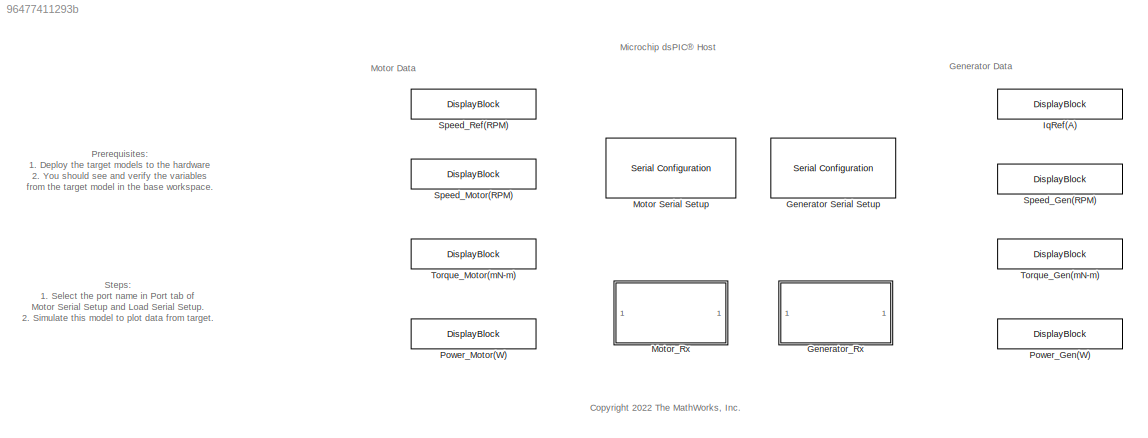
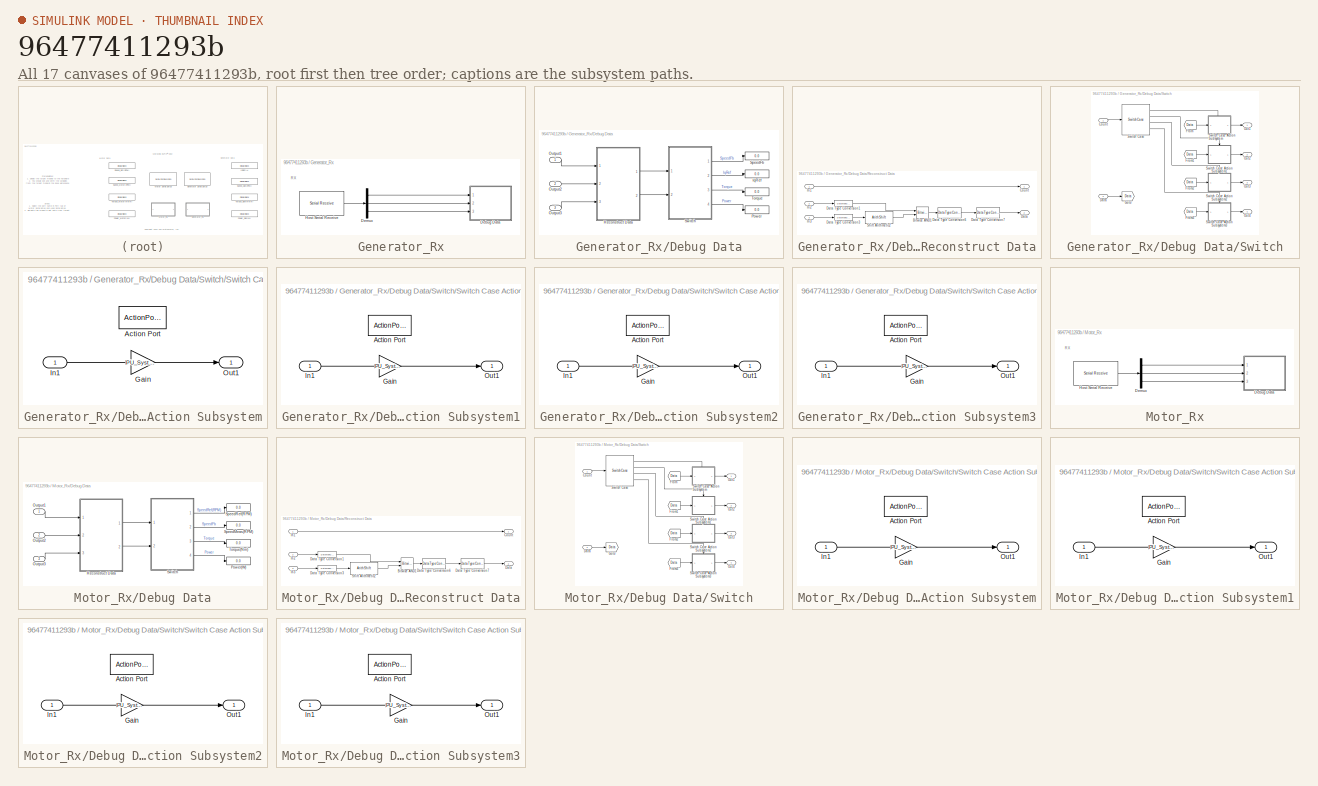
[diagram: thumbnail index - all 17 canvases of the model, root first then tree order]
MODEL slx_96477411293b
KIND model
CONFIG AbsTol = auto
CONFIG EnableMultiTasking = on
CONFIG FixedStep = auto
CONFIG MaxStep = auto
CONFIG MinStep = auto
CONFIG RelTol = 1e-3
CONFIG SampleTimeConstraint = Unconstrained
CONFIG SolverName = FixedStepDiscrete
CONFIG StartTime = 0.0
CONFIG StopTime = inf
BLOCK [Reference] Generator Serial Setup  REF=instrumentseriallib/Serial Configuration
  Ports = []
  Priority = -99
  SourceBlock = instrumentseriallib/Serial Configuration
  SourceProductBaseCode = OT,IC,MT
  SourceType = system.SerialConfiguration
BLOCK [SubSystem] Generator_Rx
  Ports = []
  RequestExecContextInheritance = off
BLOCK [SubSystem] Generator_Rx/Debug Data
  Ports = [3]
  RequestExecContextInheritance = off
BLOCK [Display] Generator_Rx/Debug Data/IqRef
  Decimation = 1
  Ports = [1]
BLOCK [Inport] Generator_Rx/Debug Data/Output1
BLOCK [Inport] Generator_Rx/Debug Data/Output2
  Port = 2
BLOCK [Inport] Generator_Rx/Debug Data/Output3
  Port = 3
BLOCK [Display] Generator_Rx/Debug Data/Power
  Decimation = 1
  Ports = [1]
BLOCK [SubSystem] Generator_Rx/Debug Data/Reconstruct Data
  Ports = [3, 2]
  RequestExecContextInheritance = off
BLOCK [Reference] Generator_Rx/Debug Data/Reconstruct Data/Bitwise AND1  REF=simulink/Logic and Bit
Operations/Bitwise
Operator
  Ports = [2, 1]
  SourceBlock = simulink/Logic and Bit\nOperations/Bitwise\nOperator
  SourceProductBaseCode = SL
  SourceType = Bitwise Operator
BLOCK [Outport] Generator_Rx/Debug Data/Reconstruct Data/Count
BLOCK [Outport] Generator_Rx/Debug Data/Reconstruct Data/Data
  Port = 2
BLOCK [DataTypeConversion] Generator_Rx/Debug Data/Reconstruct Data/Data Type Conversion1
  OutDataTypeStr = uint32
  RndMeth = Simplest
  SaturateOnIntegerOverflow = off
BLOCK [DataTypeConversion] Generator_Rx/Debug Data/Reconstruct Data/Data Type Conversion3
  OutDataTypeStr = uint32
  RndMeth = Simplest
  SaturateOnIntegerOverflow = off
BLOCK [DataTypeConversion] Generator_Rx/Debug Data/Reconstruct Data/Data Type Conversion6
  ConvertRealWorld = Stored Integer (SI)
  OutDataTypeStr = fixdt(1,16,14)
  RndMeth = Simplest
  SaturateOnIntegerOverflow = off
BLOCK [DataTypeConversion] Generator_Rx/Debug Data/Reconstruct Data/Data Type Conversion7
  OutDataTypeStr = single
  RndMeth = Simplest
  SaturateOnIntegerOverflow = off
BLOCK [Inport] Generator_Rx/Debug Data/Reconstruct Data/In1
BLOCK [Inport] Generator_Rx/Debug Data/Reconstruct Data/In2
  Port = 2
BLOCK [Inport] Generator_Rx/Debug Data/Reconstruct Data/In3
  Port = 3
BLOCK [ArithShift] Generator_Rx/Debug Data/Reconstruct Data/Shift Arithmetic2
  BitShiftDirection = Left
  BitShiftNumber = 8
  InputPortMap = u0
  Ports = [1, 1]
BLOCK [Display] Generator_Rx/Debug Data/SpeedFb
  Decimation = 1
  Ports = [1]
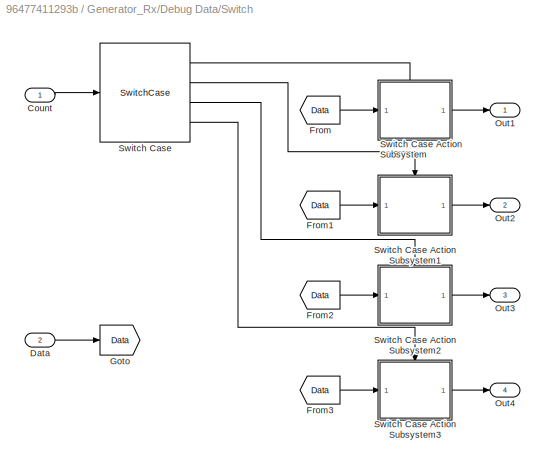
BLOCK [SubSystem] Generator_Rx/Debug Data/Switch
  Ports = [2, 4]
  RequestExecContextInheritance = off
BLOCK [Inport] Generator_Rx/Debug Data/Switch/Count
BLOCK [Inport] Generator_Rx/Debug Data/Switch/Data
  Port = 2
BLOCK [From] Generator_Rx/Debug Data/Switch/From
  GotoTag = Data
BLOCK [From] Generator_Rx/Debug Data/Switch/From1
  GotoTag = Data
BLOCK [From] Generator_Rx/Debug Data/Switch/From2
  GotoTag = Data
BLOCK [From] Generator_Rx/Debug Data/Switch/From3
  GotoTag = Data
BLOCK [Goto] Generator_Rx/Debug Data/Switch/Goto
  GotoTag = Data
BLOCK [Outport] Generator_Rx/Debug Data/Switch/Out1
BLOCK [Outport] Generator_Rx/Debug Data/Switch/Out2
  Port = 2
BLOCK [Outport] Generator_Rx/Debug Data/Switch/Out3
  Port = 3
BLOCK [Outport] Generator_Rx/Debug Data/Switch/Out4
  Port = 4
BLOCK [SwitchCase] Generator_Rx/Debug Data/Switch/Switch Case
  CaseConditions = {0,1,2,3}
  Ports = [1, 4]
  ShowDefaultCase = off
BLOCK [SubSystem] Generator_Rx/Debug Data/Switch/Switch Case Action Subsystem
  Ports = [1, 1, 0, 0, 0, 0, 0, 1]
  RequestExecContextInheritance = off
  TreatAsAtomicUnit = on
BLOCK [ActionPort] Generator_Rx/Debug Data/Switch/Switch Case Action Subsystem/Action Port
  ActionPortLabel = case [ 0 ]:
BLOCK [Gain] Generator_Rx/Debug Data/Switch/Switch Case Action Subsystem/Gain
  Gain = PU_System.N_base*1.1
BLOCK [Inport] Generator_Rx/Debug Data/Switch/Switch Case Action Subsystem/In1
BLOCK [Outport] Generator_Rx/Debug Data/Switch/Switch Case Action Subsystem/Out1
BLOCK [SubSystem] Generator_Rx/Debug Data/Switch/Switch Case Action Subsystem1
  Ports = [1, 1, 0, 0, 0, 0, 0, 1]
  RequestExecContextInheritance = off
  TreatAsAtomicUnit = on
BLOCK [ActionPort] Generator_Rx/Debug Data/Switch/Switch Case Action Subsystem1/Action Port
  ActionPortLabel = case [ 1 ]:
BLOCK [Gain] Generator_Rx/Debug Data/Switch/Switch Case Action Subsystem1/Gain
  Gain = PU_System.I_base
BLOCK [Inport] Generator_Rx/Debug Data/Switch/Switch Case Action Subsystem1/In1
BLOCK [Outport] Generator_Rx/Debug Data/Switch/Switch Case Action Subsystem1/Out1
BLOCK [SubSystem] Generator_Rx/Debug Data/Switch/Switch Case Action Subsystem2
  Ports = [1, 1, 0, 0, 0, 0, 0, 1]
  RequestExecContextInheritance = off
  TreatAsAtomicUnit = on
BLOCK [ActionPort] Generator_Rx/Debug Data/Switch/Switch Case Action Subsystem2/Action Port
  ActionPortLabel = case [ 2 ]:
BLOCK [Gain] Generator_Rx/Debug Data/Switch/Switch Case Action Subsystem2/Gain
  Gain = PU_System.T_base*1000
BLOCK [Inport] Generator_Rx/Debug Data/Switch/Switch Case Action Subsystem2/In1
BLOCK [Outport] Generator_Rx/Debug Data/Switch/Switch Case Action Subsystem2/Out1
BLOCK [SubSystem] Generator_Rx/Debug Data/Switch/Switch Case Action Subsystem3
  Ports = [1, 1, 0, 0, 0, 0, 0, 1]
  RequestExecContextInheritance = off
  TreatAsAtomicUnit = on
BLOCK [ActionPort] Generator_Rx/Debug Data/Switch/Switch Case Action Subsystem3/Action Port
  ActionPortLabel = case [ 3 ]:
BLOCK [Gain] Generator_Rx/Debug Data/Switch/Switch Case Action Subsystem3/Gain
  Gain = PU_System.P_base
BLOCK [Inport] Generator_Rx/Debug Data/Switch/Switch Case Action Subsystem3/In1
BLOCK [Outport] Generator_Rx/Debug Data/Switch/Switch Case Action Subsystem3/Out1
BLOCK [Display] Generator_Rx/Debug Data/Torque
  Decimation = 1
  Ports = [1]
BLOCK [Demux] Generator_Rx/Demux
  Outputs = 3
  Ports = [1, 3]
BLOCK [Reference] Generator_Rx/Host Serial Receive  REF=instrumentseriallib/Serial Receive
  Ports = [0, 1]
  SourceBlock = instrumentseriallib/Serial Receive
  SourceProductBaseCode = OT,IC,MT
  SourceType = system.SerialReceive
BLOCK [DisplayBlock] IqRef(A)
  Format = bank
  LabelPosition = Hide
  Transparency = 1
BLOCK [Reference] Motor Serial Setup  REF=instrumentseriallib/Serial Configuration
  Ports = []
  Priority = -99
  SourceBlock = instrumentseriallib/Serial Configuration
  SourceProductBaseCode = OT,IC,MT
  SourceType = system.SerialConfiguration
BLOCK [SubSystem] Motor_Rx
  Ports = []
  RequestExecContextInheritance = off
BLOCK [SubSystem] Motor_Rx/Debug Data
  Ports = [3]
  RequestExecContextInheritance = off
BLOCK [Inport] Motor_Rx/Debug Data/Output1
BLOCK [Inport] Motor_Rx/Debug Data/Output2
  Port = 2
BLOCK [Inport] Motor_Rx/Debug Data/Output3
  Port = 3
BLOCK [Display] Motor_Rx/Debug Data/Power(W)
  Decimation = 1
  Ports = [1]
BLOCK [SubSystem] Motor_Rx/Debug Data/Reconstruct Data
  Ports = [3, 2]
  RequestExecContextInheritance = off
BLOCK [Reference] Motor_Rx/Debug Data/Reconstruct Data/Bitwise AND1  REF=simulink/Logic and Bit
Operations/Bitwise
Operator
  Ports = [2, 1]
  SourceBlock = simulink/Logic and Bit\nOperations/Bitwise\nOperator
  SourceProductBaseCode = SL
  SourceType = Bitwise Operator
BLOCK [Outport] Motor_Rx/Debug Data/Reconstruct Data/Count
BLOCK [Outport] Motor_Rx/Debug Data/Reconstruct Data/Data
  Port = 2
BLOCK [DataTypeConversion] Motor_Rx/Debug Data/Reconstruct Data/Data Type Conversion1
  OutDataTypeStr = uint32
  RndMeth = Simplest
  SaturateOnIntegerOverflow = off
BLOCK [DataTypeConversion] Motor_Rx/Debug Data/Reconstruct Data/Data Type Conversion3
  OutDataTypeStr = uint32
  RndMeth = Simplest
  SaturateOnIntegerOverflow = off
BLOCK [DataTypeConversion] Motor_Rx/Debug Data/Reconstruct Data/Data Type Conversion6
  ConvertRealWorld = Stored Integer (SI)
  OutDataTypeStr = fixdt(1,16,14)
  RndMeth = Simplest
  SaturateOnIntegerOverflow = off
BLOCK [DataTypeConversion] Motor_Rx/Debug Data/Reconstruct Data/Data Type Conversion7
  OutDataTypeStr = single
  RndMeth = Simplest
  SaturateOnIntegerOverflow = off
BLOCK [Inport] Motor_Rx/Debug Data/Reconstruct Data/In1
BLOCK [Inport] Motor_Rx/Debug Data/Reconstruct Data/In2
  Port = 2
BLOCK [Inport] Motor_Rx/Debug Data/Reconstruct Data/In3
  Port = 3
BLOCK [ArithShift] Motor_Rx/Debug Data/Reconstruct Data/Shift Arithmetic2
  BitShiftDirection = Left
  BitShiftNumber = 8
  InputPortMap = u0
  Ports = [1, 1]
BLOCK [Display] Motor_Rx/Debug Data/SpeedMeas(RPM)
  Decimation = 1
  Ports = [1]
BLOCK [Display] Motor_Rx/Debug Data/SpeedRef(RPM)
  Decimation = 1
  Ports = [1]
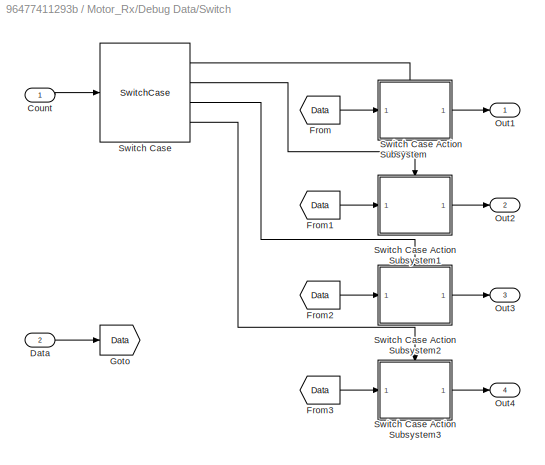
BLOCK [SubSystem] Motor_Rx/Debug Data/Switch
  Ports = [2, 4]
  RequestExecContextInheritance = off
BLOCK [Inport] Motor_Rx/Debug Data/Switch/Count
BLOCK [Inport] Motor_Rx/Debug Data/Switch/Data
  Port = 2
BLOCK [From] Motor_Rx/Debug Data/Switch/From
  GotoTag = Data
BLOCK [From] Motor_Rx/Debug Data/Switch/From1
  GotoTag = Data
BLOCK [From] Motor_Rx/Debug Data/Switch/From2
  GotoTag = Data
BLOCK [From] Motor_Rx/Debug Data/Switch/From3
  GotoTag = Data
BLOCK [Goto] Motor_Rx/Debug Data/Switch/Goto
  GotoTag = Data
BLOCK [Outport] Motor_Rx/Debug Data/Switch/Out1
BLOCK [Outport] Motor_Rx/Debug Data/Switch/Out2
  Port = 2
BLOCK [Outport] Motor_Rx/Debug Data/Switch/Out3
  Port = 3
BLOCK [Outport] Motor_Rx/Debug Data/Switch/Out4
  Port = 4
BLOCK [SwitchCase] Motor_Rx/Debug Data/Switch/Switch Case
  CaseConditions = {0,1,2,3}
  Ports = [1, 4]
  ShowDefaultCase = off
BLOCK [SubSystem] Motor_Rx/Debug Data/Switch/Switch Case Action Subsystem
  Ports = [1, 1, 0, 0, 0, 0, 0, 1]
  RequestExecContextInheritance = off
  TreatAsAtomicUnit = on
BLOCK [ActionPort] Motor_Rx/Debug Data/Switch/Switch Case Action Subsystem/Action Port
  ActionPortLabel = case [ 0 ]:
BLOCK [Gain] Motor_Rx/Debug Data/Switch/Switch Case Action Subsystem/Gain
  Gain = PU_System.N_base
BLOCK [Inport] Motor_Rx/Debug Data/Switch/Switch Case Action Subsystem/In1
BLOCK [Outport] Motor_Rx/Debug Data/Switch/Switch Case Action Subsystem/Out1
BLOCK [SubSystem] Motor_Rx/Debug Data/Switch/Switch Case Action Subsystem1
  Ports = [1, 1, 0, 0, 0, 0, 0, 1]
  RequestExecContextInheritance = off
  TreatAsAtomicUnit = on
BLOCK [ActionPort] Motor_Rx/Debug Data/Switch/Switch Case Action Subsystem1/Action Port
  ActionPortLabel = case [ 1 ]:
BLOCK [Gain] Motor_Rx/Debug Data/Switch/Switch Case Action Subsystem1/Gain
  Gain = PU_System.N_base
BLOCK [Inport] Motor_Rx/Debug Data/Switch/Switch Case Action Subsystem1/In1
BLOCK [Outport] Motor_Rx/Debug Data/Switch/Switch Case Action Subsystem1/Out1
BLOCK [SubSystem] Motor_Rx/Debug Data/Switch/Switch Case Action Subsystem2
  Ports = [1, 1, 0, 0, 0, 0, 0, 1]
  RequestExecContextInheritance = off
  TreatAsAtomicUnit = on
BLOCK [ActionPort] Motor_Rx/Debug Data/Switch/Switch Case Action Subsystem2/Action Port
  ActionPortLabel = case [ 2 ]:
BLOCK [Gain] Motor_Rx/Debug Data/Switch/Switch Case Action Subsystem2/Gain
  Gain = PU_System.T_base*1000
BLOCK [Inport] Motor_Rx/Debug Data/Switch/Switch Case Action Subsystem2/In1
BLOCK [Outport] Motor_Rx/Debug Data/Switch/Switch Case Action Subsystem2/Out1
BLOCK [SubSystem] Motor_Rx/Debug Data/Switch/Switch Case Action Subsystem3
  Ports = [1, 1, 0, 0, 0, 0, 0, 1]
  RequestExecContextInheritance = off
  TreatAsAtomicUnit = on
BLOCK [ActionPort] Motor_Rx/Debug Data/Switch/Switch Case Action Subsystem3/Action Port
  ActionPortLabel = case [ 3 ]:
BLOCK [Gain] Motor_Rx/Debug Data/Switch/Switch Case Action Subsystem3/Gain
  Gain = PU_System.P_base
BLOCK [Inport] Motor_Rx/Debug Data/Switch/Switch Case Action Subsystem3/In1
BLOCK [Outport] Motor_Rx/Debug Data/Switch/Switch Case Action Subsystem3/Out1
BLOCK [Display] Motor_Rx/Debug Data/Torque(Nm)
  Decimation = 1
  Ports = [1]
BLOCK [Demux] Motor_Rx/Demux
  Outputs = 3
  Ports = [1, 3]
BLOCK [Reference] Motor_Rx/Host Serial Receive  REF=instrumentseriallib/Serial Receive
  Ports = [0, 1]
  SourceBlock = instrumentseriallib/Serial Receive
  SourceProductBaseCode = OT,IC,MT
  SourceType = system.SerialReceive
BLOCK [DisplayBlock] Power_Gen(W)
  Format = bank
  LabelPosition = Hide
  Transparency = 1
BLOCK [DisplayBlock] Power_Motor(W)
  Format = bank
  FormatString = %i
  LabelPosition = Hide
  Transparency = 1
BLOCK [DisplayBlock] Speed_Gen(RPM)
  Format = Integer
  LabelPosition = Hide
  Transparency = 1
BLOCK [DisplayBlock] Speed_Motor(RPM)
  Format = Integer
  LabelPosition = Hide
  Transparency = 1
BLOCK [DisplayBlock] Speed_Ref(RPM)
  Format = Integer
  LabelPosition = Hide
  Transparency = 1
BLOCK [DisplayBlock] Torque_Gen(mN-m)
  Format = bank
  LabelPosition = Hide
  Transparency = 1
BLOCK [DisplayBlock] Torque_Motor(mN-m)
  Format = bank
  LabelPosition = Hide
  Transparency = 1
ANNOTATION (root): Prerequisites : 1. Deploy the target models to the hardware 2. You should see and verify the variables from the target model in the base workspace.
ANNOTATION (root): Steps: 1. Select the port name in Port tab of Motor Serial Setup and Load Serial Setup . 2. Simulate this model to plot data from target.
ANNOTATION (root): Microchip dsPIC® Host
ANNOTATION (root): <copyright redacted>
ANNOTATION (root): Generator Data
ANNOTATION (root): Motor Data
ANNOTATION Generator_Rx: RX
ANNOTATION Motor_Rx: RX
LINE Generator_Rx/Debug Data/Output1:1 -> Generator_Rx/Debug Data/Reconstruct Data:1
LINE Generator_Rx/Debug Data/Output2:1 -> Generator_Rx/Debug Data/Reconstruct Data:2
LINE Generator_Rx/Debug Data/Output3:1 -> Generator_Rx/Debug Data/Reconstruct Data:3
LINE Generator_Rx/Debug Data/Reconstruct Data/Bitwise AND1:1 -> Generator_Rx/Debug Data/Reconstruct Data/Data Type Conversion6:1
LINE Generator_Rx/Debug Data/Reconstruct Data/Data Type Conversion1:1 -> Generator_Rx/Debug Data/Reconstruct Data/Bitwise AND1:1
LINE Generator_Rx/Debug Data/Reconstruct Data/Data Type Conversion3:1 -> Generator_Rx/Debug Data/Reconstruct Data/Shift Arithmetic2:1
LINE Generator_Rx/Debug Data/Reconstruct Data/Data Type Conversion6:1 -> Generator_Rx/Debug Data/Reconstruct Data/Data Type Conversion7:1
LINE Generator_Rx/Debug Data/Reconstruct Data/Data Type Conversion7:1 -> Generator_Rx/Debug Data/Reconstruct Data/Data:1
LINE Generator_Rx/Debug Data/Reconstruct Data/In1:1 -> Generator_Rx/Debug Data/Reconstruct Data/Count:1
LINE Generator_Rx/Debug Data/Reconstruct Data/In2:1 -> Generator_Rx/Debug Data/Reconstruct Data/Data Type Conversion1:1
LINE Generator_Rx/Debug Data/Reconstruct Data/In3:1 -> Generator_Rx/Debug Data/Reconstruct Data/Data Type Conversion3:1
LINE Generator_Rx/Debug Data/Reconstruct Data/Shift Arithmetic2:1 -> Generator_Rx/Debug Data/Reconstruct Data/Bitwise AND1:2
LINE Generator_Rx/Debug Data/Reconstruct Data:1 -> Generator_Rx/Debug Data/Switch:1
LINE Generator_Rx/Debug Data/Reconstruct Data:2 -> Generator_Rx/Debug Data/Switch:2
LINE Generator_Rx/Debug Data/Switch/Count:1 -> Generator_Rx/Debug Data/Switch/Switch Case:1
LINE Generator_Rx/Debug Data/Switch/Data:1 -> Generator_Rx/Debug Data/Switch/Goto:1
LINE Generator_Rx/Debug Data/Switch/From1:1 -> Generator_Rx/Debug Data/Switch/Switch Case Action Subsystem1:1
LINE Generator_Rx/Debug Data/Switch/From2:1 -> Generator_Rx/Debug Data/Switch/Switch Case Action Subsystem2:1
LINE Generator_Rx/Debug Data/Switch/From3:1 -> Generator_Rx/Debug Data/Switch/Switch Case Action Subsystem3:1
LINE Generator_Rx/Debug Data/Switch/From:1 -> Generator_Rx/Debug Data/Switch/Switch Case Action Subsystem:1
LINE Generator_Rx/Debug Data/Switch/Switch Case Action Subsystem/Gain:1 -> Generator_Rx/Debug Data/Switch/Switch Case Action Subsystem/Out1:1
LINE Generator_Rx/Debug Data/Switch/Switch Case Action Subsystem/In1:1 -> Generator_Rx/Debug Data/Switch/Switch Case Action Subsystem/Gain:1
LINE Generator_Rx/Debug Data/Switch/Switch Case Action Subsystem1/Gain:1 -> Generator_Rx/Debug Data/Switch/Switch Case Action Subsystem1/Out1:1
LINE Generator_Rx/Debug Data/Switch/Switch Case Action Subsystem1/In1:1 -> Generator_Rx/Debug Data/Switch/Switch Case Action Subsystem1/Gain:1
LINE Generator_Rx/Debug Data/Switch/Switch Case Action Subsystem1:1 -> Generator_Rx/Debug Data/Switch/Out2:1
LINE Generator_Rx/Debug Data/Switch/Switch Case Action Subsystem2/Gain:1 -> Generator_Rx/Debug Data/Switch/Switch Case Action Subsystem2/Out1:1
LINE Generator_Rx/Debug Data/Switch/Switch Case Action Subsystem2/In1:1 -> Generator_Rx/Debug Data/Switch/Switch Case Action Subsystem2/Gain:1
LINE Generator_Rx/Debug Data/Switch/Switch Case Action Subsystem2:1 -> Generator_Rx/Debug Data/Switch/Out3:1
LINE Generator_Rx/Debug Data/Switch/Switch Case Action Subsystem3/Gain:1 -> Generator_Rx/Debug Data/Switch/Switch Case Action Subsystem3/Out1:1
LINE Generator_Rx/Debug Data/Switch/Switch Case Action Subsystem3/In1:1 -> Generator_Rx/Debug Data/Switch/Switch Case Action Subsystem3/Gain:1
LINE Generator_Rx/Debug Data/Switch/Switch Case Action Subsystem3:1 -> Generator_Rx/Debug Data/Switch/Out4:1
LINE Generator_Rx/Debug Data/Switch/Switch Case Action Subsystem:1 -> Generator_Rx/Debug Data/Switch/Out1:1
LINE Generator_Rx/Debug Data/Switch/Switch Case:1 -> Generator_Rx/Debug Data/Switch/Switch Case Action Subsystem:ifaction
LINE Generator_Rx/Debug Data/Switch/Switch Case:2 -> Generator_Rx/Debug Data/Switch/Switch Case Action Subsystem1:ifaction
LINE Generator_Rx/Debug Data/Switch/Switch Case:3 -> Generator_Rx/Debug Data/Switch/Switch Case Action Subsystem2:ifaction
LINE Generator_Rx/Debug Data/Switch/Switch Case:4 -> Generator_Rx/Debug Data/Switch/Switch Case Action Subsystem3:ifaction
LINE Generator_Rx/Debug Data/Switch:1 -> Generator_Rx/Debug Data/SpeedFb:1
LINE Generator_Rx/Debug Data/Switch:2 -> Generator_Rx/Debug Data/IqRef:1
LINE Generator_Rx/Debug Data/Switch:3 -> Generator_Rx/Debug Data/Torque:1
LINE Generator_Rx/Debug Data/Switch:4 -> Generator_Rx/Debug Data/Power:1
LINE Generator_Rx/Demux:1 -> Generator_Rx/Debug Data:1
LINE Generator_Rx/Demux:2 -> Generator_Rx/Debug Data:2
LINE Generator_Rx/Demux:3 -> Generator_Rx/Debug Data:3
LINE Generator_Rx/Host Serial Receive:1 -> Generator_Rx/Demux:1
LINE Motor_Rx/Debug Data/Output1:1 -> Motor_Rx/Debug Data/Reconstruct Data:1
LINE Motor_Rx/Debug Data/Output2:1 -> Motor_Rx/Debug Data/Reconstruct Data:2
LINE Motor_Rx/Debug Data/Output3:1 -> Motor_Rx/Debug Data/Reconstruct Data:3
LINE Motor_Rx/Debug Data/Reconstruct Data/Bitwise AND1:1 -> Motor_Rx/Debug Data/Reconstruct Data/Data Type Conversion6:1
LINE Motor_Rx/Debug Data/Reconstruct Data/Data Type Conversion1:1 -> Motor_Rx/Debug Data/Reconstruct Data/Bitwise AND1:1
LINE Motor_Rx/Debug Data/Reconstruct Data/Data Type Conversion3:1 -> Motor_Rx/Debug Data/Reconstruct Data/Shift Arithmetic2:1
LINE Motor_Rx/Debug Data/Reconstruct Data/Data Type Conversion6:1 -> Motor_Rx/Debug Data/Reconstruct Data/Data Type Conversion7:1
LINE Motor_Rx/Debug Data/Reconstruct Data/Data Type Conversion7:1 -> Motor_Rx/Debug Data/Reconstruct Data/Data:1
LINE Motor_Rx/Debug Data/Reconstruct Data/In1:1 -> Motor_Rx/Debug Data/Reconstruct Data/Count:1
LINE Motor_Rx/Debug Data/Reconstruct Data/In2:1 -> Motor_Rx/Debug Data/Reconstruct Data/Data Type Conversion1:1
LINE Motor_Rx/Debug Data/Reconstruct Data/In3:1 -> Motor_Rx/Debug Data/Reconstruct Data/Data Type Conversion3:1
LINE Motor_Rx/Debug Data/Reconstruct Data/Shift Arithmetic2:1 -> Motor_Rx/Debug Data/Reconstruct Data/Bitwise AND1:2
LINE Motor_Rx/Debug Data/Reconstruct Data:1 -> Motor_Rx/Debug Data/Switch:1
LINE Motor_Rx/Debug Data/Reconstruct Data:2 -> Motor_Rx/Debug Data/Switch:2
LINE Motor_Rx/Debug Data/Switch/Count:1 -> Motor_Rx/Debug Data/Switch/Switch Case:1
LINE Motor_Rx/Debug Data/Switch/Data:1 -> Motor_Rx/Debug Data/Switch/Goto:1
LINE Motor_Rx/Debug Data/Switch/From1:1 -> Motor_Rx/Debug Data/Switch/Switch Case Action Subsystem1:1
LINE Motor_Rx/Debug Data/Switch/From2:1 -> Motor_Rx/Debug Data/Switch/Switch Case Action Subsystem2:1
LINE Motor_Rx/Debug Data/Switch/From3:1 -> Motor_Rx/Debug Data/Switch/Switch Case Action Subsystem3:1
LINE Motor_Rx/Debug Data/Switch/From:1 -> Motor_Rx/Debug Data/Switch/Switch Case Action Subsystem:1
LINE Motor_Rx/Debug Data/Switch/Switch Case Action Subsystem/Gain:1 -> Motor_Rx/Debug Data/Switch/Switch Case Action Subsystem/Out1:1
LINE Motor_Rx/Debug Data/Switch/Switch Case Action Subsystem/In1:1 -> Motor_Rx/Debug Data/Switch/Switch Case Action Subsystem/Gain:1
LINE Motor_Rx/Debug Data/Switch/Switch Case Action Subsystem1/Gain:1 -> Motor_Rx/Debug Data/Switch/Switch Case Action Subsystem1/Out1:1
LINE Motor_Rx/Debug Data/Switch/Switch Case Action Subsystem1/In1:1 -> Motor_Rx/Debug Data/Switch/Switch Case Action Subsystem1/Gain:1
LINE Motor_Rx/Debug Data/Switch/Switch Case Action Subsystem1:1 -> Motor_Rx/Debug Data/Switch/Out2:1
LINE Motor_Rx/Debug Data/Switch/Switch Case Action Subsystem2/Gain:1 -> Motor_Rx/Debug Data/Switch/Switch Case Action Subsystem2/Out1:1
LINE Motor_Rx/Debug Data/Switch/Switch Case Action Subsystem2/In1:1 -> Motor_Rx/Debug Data/Switch/Switch Case Action Subsystem2/Gain:1
LINE Motor_Rx/Debug Data/Switch/Switch Case Action Subsystem2:1 -> Motor_Rx/Debug Data/Switch/Out3:1
LINE Motor_Rx/Debug Data/Switch/Switch Case Action Subsystem3/Gain:1 -> Motor_Rx/Debug Data/Switch/Switch Case Action Subsystem3/Out1:1
LINE Motor_Rx/Debug Data/Switch/Switch Case Action Subsystem3/In1:1 -> Motor_Rx/Debug Data/Switch/Switch Case Action Subsystem3/Gain:1
LINE Motor_Rx/Debug Data/Switch/Switch Case Action Subsystem3:1 -> Motor_Rx/Debug Data/Switch/Out4:1
LINE Motor_Rx/Debug Data/Switch/Switch Case Action Subsystem:1 -> Motor_Rx/Debug Data/Switch/Out1:1
LINE Motor_Rx/Debug Data/Switch/Switch Case:1 -> Motor_Rx/Debug Data/Switch/Switch Case Action Subsystem:ifaction
LINE Motor_Rx/Debug Data/Switch/Switch Case:2 -> Motor_Rx/Debug Data/Switch/Switch Case Action Subsystem1:ifaction
LINE Motor_Rx/Debug Data/Switch/Switch Case:3 -> Motor_Rx/Debug Data/Switch/Switch Case Action Subsystem2:ifaction
LINE Motor_Rx/Debug Data/Switch/Switch Case:4 -> Motor_Rx/Debug Data/Switch/Switch Case Action Subsystem3:ifaction
LINE Motor_Rx/Debug Data/Switch:1 -> Motor_Rx/Debug Data/SpeedRef(RPM):1
LINE Motor_Rx/Debug Data/Switch:2 -> Motor_Rx/Debug Data/SpeedMeas(RPM):1
LINE Motor_Rx/Debug Data/Switch:3 -> Motor_Rx/Debug Data/Torque(Nm):1
LINE Motor_Rx/Debug Data/Switch:4 -> Motor_Rx/Debug Data/Power(W):1
LINE Motor_Rx/Demux:1 -> Motor_Rx/Debug Data:1
LINE Motor_Rx/Demux:2 -> Motor_Rx/Debug Data:2
LINE Motor_Rx/Demux:3 -> Motor_Rx/Debug Data:3
LINE Motor_Rx/Host Serial Receive:1 -> Motor_Rx/Demux:1
